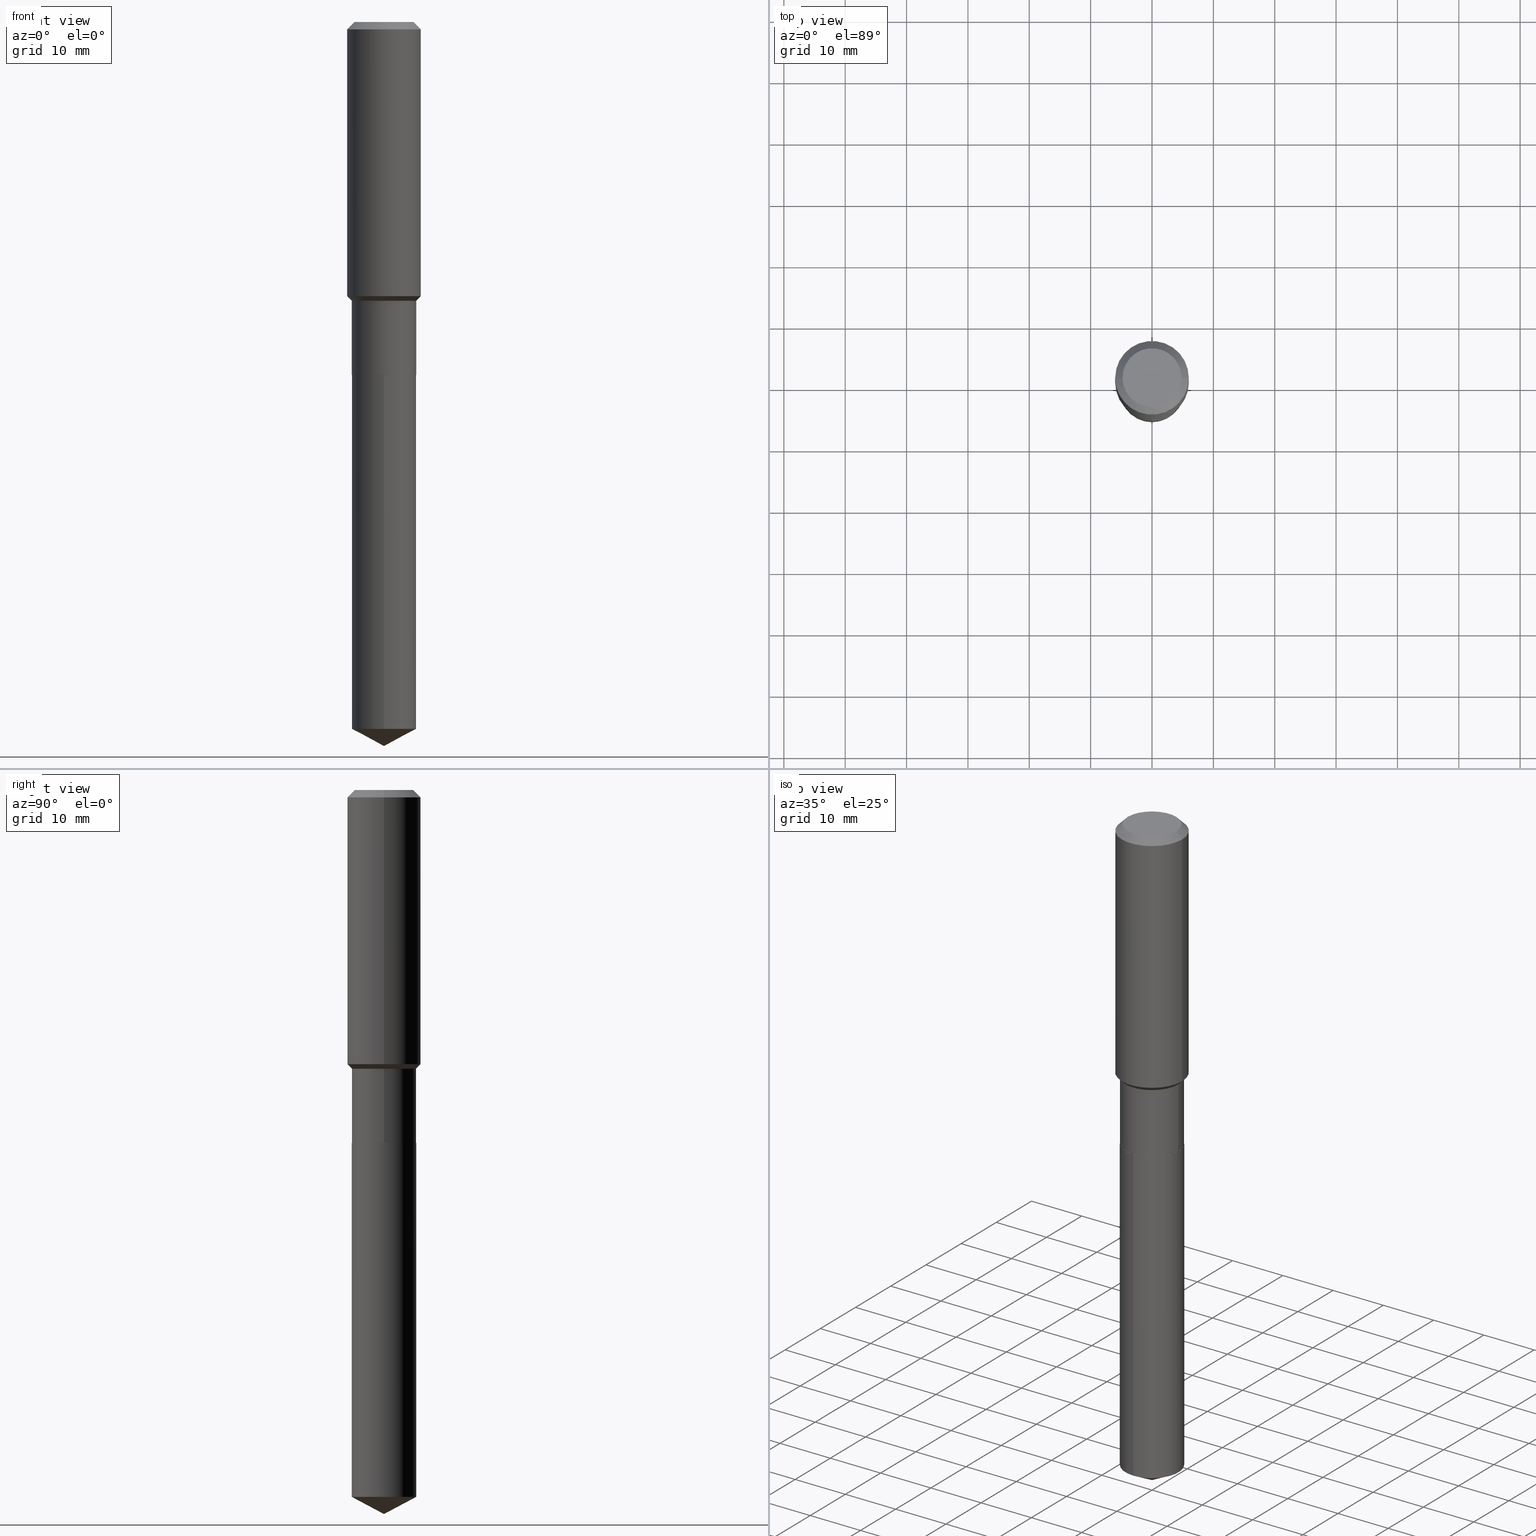
[diagram: canonical four-view strip — front | top / right | iso, engineering-drawing reading convention]
A machine part, canonical four-view strip (front | top / right | iso — engineering-drawing reading convention). The complete STEP part file that produces these views, byte-faithful:
ISO-10303-21;
HEADER;
FILE_DESCRIPTION (( 'STEP AP203' ),
    '1' );
FILE_NAME ('64875.STEP',
    '2024-04-24T19:26:18',
    ( '' ),
    ( '' ),
    'SwSTEP 2.0',
    'SolidWorks 2023',
    '' );
FILE_SCHEMA (( 'CONFIG_CONTROL_DESIGN' ));
ENDSEC;

DATA;
#1 = AXIS2_PLACEMENT_3D ( 'NONE', #317, #312, #489 ) ;
#2 = CARTESIAN_POINT ( 'NONE',  ( 4.373476412981496355E-29, -6.244165226387079301E-15, -1.788399999999999324 ) ) ;
#3 = CC_DESIGN_PERSON_AND_ORGANIZATION_ASSIGNMENT ( #89, #316, ( #209 ) ) ;
#4 = CARTESIAN_POINT ( 'NONE',  ( 1.155239464041865506E-30, -1.649375784469511859E-16, -0.04724000000000028177 ) ) ;
#5 = ORIENTED_EDGE ( 'NONE', *, *, #55, .T. ) ;
#6 = PERSON_AND_ORGANIZATION ( #371, #475 ) ;
#7 = CARTESIAN_POINT ( 'NONE',  ( -0.2362000000000001043, 1.678301941865357380E-15, -1.161852468318209317E-29 ) ) ;
#8 = EDGE_CURVE ( 'NONE', #233, #51, #44, .T. ) ;
#9 = APPROVAL_STATUS ( 'not_yet_approved' ) ;
#10 = DIRECTION ( 'NONE',  ( -1.000000000000000000, 6.982962677686266711E-15, 0.000000000000000000 ) ) ;
#11 = AXIS2_PLACEMENT_3D ( 'NONE', #29, #110, #75 ) ;
#12 = CARTESIAN_POINT ( 'NONE',  ( 4.301335083199035081E-29, -6.141166526891206646E-15, -1.758899999999999464 ) ) ;
#13 = CARTESIAN_POINT ( 'NONE',  ( 0.2066999999999999671, -1.443378385477751018E-15, 1.007905739557019780E-29 ) ) ;
#14 = CONICAL_SURFACE ( 'NONE', #224, 0.2066999999999999393, 0.7853981633974518317 ) ;
#16 = APPROVAL_PERSON_ORGANIZATION ( #282, #104, #428 ) ;
#15 = CC_DESIGN_DATE_AND_TIME_ASSIGNMENT ( #313, #115, ( #71 ) ) ;
#17 = EDGE_LOOP ( 'NONE', ( #251, #479, #419, #364 ) ) ;
#18 = CARTESIAN_POINT ( 'NONE',  ( -0.2066999999999999393, -4.775473391570952253E-15, -1.788399999999999324 ) ) ;
#19 = ORIENTED_EDGE ( 'NONE', *, *, #399, .T. ) ;
#20 = DIRECTION ( 'NONE',  ( -0.7071067811865500152, 7.493145998870363626E-15, 0.7071067811865450192 ) ) ;
#21 = DIRECTION ( 'NONE',  ( -2.445464135208139913E-29, 3.491488027948060197E-15, 1.000000000000000000 ) ) ;
#22 = ADVANCED_FACE ( 'NONE', ( #35 ), #486, .T. ) ;
#23 = ORIENTED_EDGE ( 'NONE', *, *, #190, .T. ) ;
#24 = CYLINDRICAL_SURFACE ( 'NONE', #94, 0.2067000000000000226 ) ;
#25 = ORIENTED_EDGE ( 'NONE', *, *, #147, .T. ) ;
#26 = ORIENTED_EDGE ( 'NONE', *, *, #279, .F. ) ;
#27 = CARTESIAN_POINT ( 'NONE',  ( -0.1889600000000000168, 1.401969416799070942E-15, 3.855188123706346622E-18 ) ) ;
#28 = AXIS2_PLACEMENT_3D ( 'NONE', #40, #377, #453 ) ;
#29 = CARTESIAN_POINT ( 'NONE',  ( 5.536052283441911489E-29, -7.904015454873111947E-15, -2.263799999999999812 ) ) ;
#30 = LINE ( 'NONE', #220, #131 ) ;
#31 = FACE_OUTER_BOUND ( 'NONE', #447, .T. ) ;
#32 = CYLINDRICAL_SURFACE ( 'NONE', #226, 0.2362000000000001043 ) ;
#33 = EDGE_CURVE ( 'NONE', #170, #415, #78, .T. ) ;
#34 = APPROVAL ( #158, 'UNSPECIFIED' ) ;
#35 = FACE_OUTER_BOUND ( 'NONE', #337, .T. ) ;
#36 = CALENDAR_DATE ( 2024, 24, 4 ) ;
#37 = VECTOR ( 'NONE', #20, 39.37007874015748143 ) ;
#38 = CARTESIAN_POINT ( 'NONE',  ( 0.000000000000000000, 0.000000000000000000, 0.000000000000000000 ) ) ;
#39 = SECURITY_CLASSIFICATION_LEVEL ( 'unclassified' ) ;
#40 = CARTESIAN_POINT ( 'NONE',  ( 4.373476412981496355E-29, -6.244165226387079301E-15, -1.788399999999999324 ) ) ;
#41 = CARTESIAN_POINT ( 'NONE',  ( 5.534829549038819808E-29, -7.902269714203691232E-15, -2.263300000000000090 ) ) ;
#42 = DIRECTION ( 'NONE',  ( 0.000000000000000000, 0.000000000000000000, 1.000000000000000000 ) ) ;
#43 = DIRECTION ( 'NONE',  ( 0.7071067811865453523, -7.319954787623248157E-15, -0.7071067811865496822 ) ) ;
#44 = CIRCLE ( 'NONE', #93, 0.2361999999999999933 ) ;
#45 = DIRECTION ( 'NONE',  ( -2.445468806185136597E-29, 3.491481338843145583E-15, 1.000000000000000000 ) ) ;
#46 = DIRECTION ( 'NONE',  ( -6.982962677686265133E-15, -1.000000000000000000, 2.643297526525653668E-15 ) ) ;
#47 = CIRCLE ( 'NONE', #277, 0.2067000000000000226 ) ;
#48 = PRODUCT_DEFINITION_SHAPE ( 'NONE', 'NONE',  #253 ) ;
#49 = AXIS2_PLACEMENT_3D ( 'NONE', #441, #450, #67 ) ;
#50 = MANIFOLD_SOLID_BREP ( 'Body-Move/Copy2[2]', #90 ) ;
#51 = VERTEX_POINT ( 'NONE', #232 ) ;
#52 = ADVANCED_FACE ( 'NONE', ( #264 ), #436, .T. ) ;
#53 = DIRECTION ( 'NONE',  ( -2.445468806185136597E-29, 3.491481338843145583E-15, 1.000000000000000000 ) ) ;
#54 = ORIENTED_EDGE ( 'NONE', *, *, #117, .F. ) ;
#55 = EDGE_CURVE ( 'NONE', #216, #51, #339, .T. ) ;
#56 = DIRECTION ( 'NONE',  ( -2.445468806185136597E-29, 3.491481338843145583E-15, 1.000000000000000000 ) ) ;
#57 = EDGE_LOOP ( 'NONE', ( #276, #135, #386 ) ) ;
#58 = AXIS2_PLACEMENT_3D ( 'NONE', #238, #187, #388 ) ;
#59 = CC_DESIGN_APPROVAL ( #34, ( #71 ) ) ;
#60 = FACE_OUTER_BOUND ( 'NONE', #66, .T. ) ;
#61 = ADVANCED_FACE ( 'NONE', ( #345 ), #14, .T. ) ;
#62 = EDGE_LOOP ( 'NONE', ( #484, #402, #398, #333 ) ) ;
#63 = CARTESIAN_POINT ( 'NONE',  ( 5.536052283441911489E-29, -7.904015454873111947E-15, -2.263799999999999812 ) ) ;
#64 = VERTEX_POINT ( 'NONE', #146 ) ;
#65 = EDGE_CURVE ( 'NONE', #197, #408, #304, .T. ) ;
#66 = EDGE_LOOP ( 'NONE', ( #252, #144, #177, #26 ) ) ;
#67 = DIRECTION ( 'NONE',  ( 1.000000000000000000, -6.982962677686265922E-15, 4.876176775795935793E-29 ) ) ;
#68 = DIRECTION ( 'NONE',  ( -6.165590087286842340E-15, -0.8829475928589273215, 0.4694715627858898066 ) ) ;
#69 =( LENGTH_UNIT ( ) NAMED_UNIT ( * ) SI_UNIT ( $, .METRE. ) );
#70 = CIRCLE ( 'NONE', #112, 0.2067000000000000226 ) ;
#71 = SECURITY_CLASSIFICATION ( '', '', #39 ) ;
#72 = DIRECTION ( 'NONE',  ( 1.000000000000000000, -6.982962677686266711E-15, 4.876176775795935793E-29 ) ) ;
#73 = EDGE_CURVE ( 'NONE', #415, #105, #298, .T. ) ;
#74 = LINE ( 'NONE', #369, #445 ) ;
#75 = DIRECTION ( 'NONE',  ( 1.000000000000000000, -6.982962677686268288E-15, 0.000000000000000000 ) ) ;
#76 = APPLICATION_CONTEXT ( 'configuration controlled 3d designs of mechanical parts and assemblies' ) ;
#77 = CALENDAR_DATE ( 2024, 24, 4 ) ;
#78 = LINE ( 'NONE', #196, #173 ) ;
#79 = ORIENTED_EDGE ( 'NONE', *, *, #201, .T. ) ;
#80 = PERSON_AND_ORGANIZATION ( #371, #475 ) ;
#81 = AXIS2_PLACEMENT_3D ( 'NONE', #322, #471, #248 ) ;
#82 = AXIS2_PLACEMENT_3D ( 'NONE', #476, #352, #10 ) ;
#83 = CARTESIAN_POINT ( 'NONE',  ( 1.136089273293645510E-28, -1.622040593143830205E-14, -4.645699999999999719 ) ) ;
#84 = UNCERTAINTY_MEASURE_WITH_UNIT (LENGTH_MEASURE( 1.000000000000000082E-05 ), #443, 'distance_accuracy_value', 'NONE');
#85 = CALENDAR_DATE ( 2024, 24, 4 ) ;
#86 = DIRECTION ( 'NONE',  ( 1.000000000000000000, -6.982962677686266711E-15, 0.000000000000000000 ) ) ;
#87 = DATE_AND_TIME ( #422, #299 ) ;
#88 = DIRECTION ( 'NONE',  ( -2.445464135208139913E-29, 3.491488027948060197E-15, 1.000000000000000000 ) ) ;
#89 = PERSON_AND_ORGANIZATION ( #371, #475 ) ;
#90 = CLOSED_SHELL ( 'NONE', ( #440, #342, #482, #61, #95, #22, #52, #466, #109, #470, #416, #472 ) ) ;
#91 = AXIS2_PLACEMENT_3D ( 'NONE', #410, #314, #418 ) ;
#92 = CARTESIAN_POINT ( 'NONE',  ( 0.2362000000000001043, -1.649375784469496920E-15, 1.151752954443000508E-29 ) ) ;
#93 = AXIS2_PLACEMENT_3D ( 'NONE', #400, #53, #212 ) ;
#94 = AXIS2_PLACEMENT_3D ( 'NONE', #448, #409, #294 ) ;
#95 = ADVANCED_FACE ( 'NONE', ( #227 ), #229, .T. ) ;
#96 = ADVANCED_FACE ( 'NONE', ( #193 ), #183, .T. ) ;
#97 = DIRECTION ( 'NONE',  ( -2.445464135208139913E-29, 3.491488027948060197E-15, 1.000000000000000000 ) ) ;
#98 = AXIS2_PLACEMENT_3D ( 'NONE', #390, #254, #206 ) ;
#99 = ORIENTED_EDGE ( 'NONE', *, *, #241, .T. ) ;
#100 = DIRECTION ( 'NONE',  ( 1.000000000000000000, -6.982962677686264344E-15, 0.000000000000000000 ) ) ;
#101 = CARTESIAN_POINT ( 'NONE',  ( -4.713871149261273121E-47, 6.730158695841826722E-33, 1.927594061857931128E-18 ) ) ;
#102 = ORIENTED_EDGE ( 'NONE', *, *, #261, .T. ) ;
#103 = CARTESIAN_POINT ( 'NONE',  ( 0.2066999999999999393, -7.687543611864829727E-15, -1.788399999999999324 ) ) ;
#104 = APPROVAL ( #9, 'UNSPECIFIED' ) ;
#105 = VERTEX_POINT ( 'NONE', #451 ) ;
#106 = DIRECTION ( 'NONE',  ( -0.7071067811865453523, 2.468850131082234184E-15, -0.7071067811865496822 ) ) ;
#107 = DIRECTION ( 'NONE',  ( -2.445468806185136597E-29, 3.491481338843145583E-15, 1.000000000000000000 ) ) ;
#108 = DIRECTION ( 'NONE',  ( 1.000000000000000000, -6.982962677686268288E-15, 0.000000000000000000 ) ) ;
#109 = ADVANCED_FACE ( 'NONE', ( #343 ), #249, .T. ) ;
#110 = DIRECTION ( 'NONE',  ( -2.445468806185136597E-29, 3.491481338843145583E-15, 1.000000000000000000 ) ) ;
#111 = LENGTH_MEASURE_WITH_UNIT ( LENGTH_MEASURE( 0.02539999999999999897 ), #69 );
#112 = AXIS2_PLACEMENT_3D ( 'NONE', #434, #97, #46 ) ;
#113 = AXIS2_PLACEMENT_3D ( 'NONE', #178, #300, #480 ) ;
#114 = LINE ( 'NONE', #459, #432 ) ;
#115 = DATE_TIME_ROLE ( 'classification_date' ) ;
#116 = DIRECTION ( 'NONE',  ( -2.445468806185136597E-29, 3.491481338843145583E-15, 1.000000000000000000 ) ) ;
#117 = EDGE_CURVE ( 'NONE', #315, #197, #114, .T. ) ;
#118 = COORDINATED_UNIVERSAL_TIME_OFFSET ( 5, 0, .BEHIND. ) ;
#119 = CARTESIAN_POINT ( 'NONE',  ( 5.534829549038819808E-29, -7.902269714203691232E-15, -2.263300000000000090 ) ) ;
#120 = COORDINATED_UNIVERSAL_TIME_OFFSET ( 5, 0, .BEHIND. ) ;
#121 = VECTOR ( 'NONE', #461, 39.37007874015748143 ) ;
#122 = CONICAL_SURFACE ( 'NONE', #210, 0.2062000000000000222, 0.7853981633975507526 ) ;
#123 = CARTESIAN_POINT ( 'NONE',  ( 4.301335083199035081E-29, -6.141166526891206646E-15, -1.758899999999999464 ) ) ;
#124 = DIRECTION ( 'NONE',  ( -2.445464135208139913E-29, 3.491488027948059802E-15, 1.000000000000000000 ) ) ;
#125 = APPROVAL_STATUS ( 'not_yet_approved' ) ;
#126 = DIRECTION ( 'NONE',  ( -0.7071067811866199593, 7.493145998870616062E-15, 0.7071067811864750752 ) ) ;
#127 = ADVANCED_FACE ( 'NONE', ( #31 ), #152, .F. ) ;
#128 = EDGE_CURVE ( 'NONE', #315, #301, #308, .T. ) ;
#129 = AXIS2_PLACEMENT_3D ( 'NONE', #38, #348, #199 ) ;
#130 = DIRECTION ( 'NONE',  ( -2.445468806185136877E-29, 3.491481338843145188E-15, 1.000000000000000000 ) ) ;
#131 = VECTOR ( 'NONE', #145, 39.37007874015748143 ) ;
#132 = ORIENTED_EDGE ( 'NONE', *, *, #297, .F. ) ;
#133 = VECTOR ( 'NONE', #421, 39.37007874015748143 ) ;
#134 = CARTESIAN_POINT ( 'NONE',  ( -1.443378385477640183E-15, -0.2067000000000157878, -4.535795660475572255 ) ) ;
#135 = ORIENTED_EDGE ( 'NONE', *, *, #117, .T. ) ;
#136 = FACE_OUTER_BOUND ( 'NONE', #188, .T. ) ;
#137 = EDGE_CURVE ( 'NONE', #258, #449, #353, .T. ) ;
#138 = CIRCLE ( 'NONE', #269, 0.2361999999999999933 ) ;
#139 = AXIS2_PLACEMENT_3D ( 'NONE', #63, #21, #488 ) ;
#140 = DIRECTION ( 'NONE',  ( 2.438088387897960049E-29, -3.491481338843145188E-15, -1.000000000000000000 ) ) ;
#141 = ORIENTED_EDGE ( 'NONE', *, *, #435, .T. ) ;
#142 = ORIENTED_EDGE ( 'NONE', *, *, #309, .T. ) ;
#143 = DIRECTION ( 'NONE',  ( -2.445468806185136597E-29, 3.491481338843145583E-15, 1.000000000000000000 ) ) ;
#144 = ORIENTED_EDGE ( 'NONE', *, *, #204, .T. ) ;
#145 = DIRECTION ( 'NONE',  ( 0.7071067811865500152, -2.468850131082282699E-15, 0.7071067811865450192 ) ) ;
#146 = CARTESIAN_POINT ( 'NONE',  ( 0.2362000000000002153, -7.790542311360703960E-15, -1.758899999999999464 ) ) ;
#147 = EDGE_CURVE ( 'NONE', #170, #325, #286, .T. ) ;
#148 = ORIENTED_EDGE ( 'NONE', *, *, #309, .F. ) ;
#149 = PERSON_AND_ORGANIZATION_ROLE ( 'design_supplier' ) ;
#150 = LOCAL_TIME ( 15, 26, 18.00000000000000000, #455 ) ;
#151 = CIRCLE ( 'NONE', #437, 0.1889600000000000168 ) ;
#152 = PLANE ( 'NONE',  #1 ) ;
#153 = EDGE_CURVE ( 'NONE', #325, #170, #328, .T. ) ;
#154 = CARTESIAN_POINT ( 'NONE',  ( 0.000000000000000000, 0.000000000000000000, 0.000000000000000000 ) ) ;
#155 = DIRECTION ( 'NONE',  ( 1.000000000000000000, -6.982962677686264344E-15, 0.000000000000000000 ) ) ;
#156 = ORIENTED_EDGE ( 'NONE', *, *, #8, .T. ) ;
#157 = ADVANCED_BREP_SHAPE_REPRESENTATION ( '64875', ( #382, #50, #259 ), #360 ) ;
#158 = APPROVAL_STATUS ( 'not_yet_approved' ) ;
#159 = EDGE_CURVE ( 'NONE', #197, #301, #346, .T. ) ;
#160 = DIRECTION ( 'NONE',  ( 1.000000000000000000, -6.982962677686269866E-15, 0.000000000000000000 ) ) ;
#161 = ORIENTED_EDGE ( 'NONE', *, *, #147, .F. ) ;
#162 =( NAMED_UNIT ( * ) SI_UNIT ( $, .STERADIAN. ) SOLID_ANGLE_UNIT ( ) );
#163 = AXIS2_PLACEMENT_3D ( 'NONE', #119, #223, #160 ) ;
#164 = CARTESIAN_POINT ( 'NONE',  ( 5.536052283441911489E-29, -7.904015454873111947E-15, -2.263799999999999812 ) ) ;
#165 = EDGE_CURVE ( 'NONE', #64, #233, #365, .T. ) ;
#166 = DIRECTION ( 'NONE',  ( -2.445464135208139913E-29, 3.491488027948060197E-15, 1.000000000000000000 ) ) ;
#167 = LINE ( 'NONE', #280, #289 ) ;
#168 = VECTOR ( 'NONE', #68, 39.37007874015748143 ) ;
#169 = EDGE_CURVE ( 'NONE', #258, #216, #213, .T. ) ;
#170 = VERTEX_POINT ( 'NONE', #323 ) ;
#171 = DIRECTION ( 'NONE',  ( -2.445468806185136597E-29, 3.491481338843145583E-15, 1.000000000000000000 ) ) ;
#172 = ORIENTED_EDGE ( 'NONE', *, *, #165, .F. ) ;
#173 = VECTOR ( 'NONE', #350, 39.37007874015748143 ) ;
#174 = AXIS2_PLACEMENT_3D ( 'NONE', #429, #88, #205 ) ;
#175 = EDGE_LOOP ( 'NONE', ( #102, #5, #292, #172 ) ) ;
#176 = LINE ( 'NONE', #13, #336 ) ;
#177 = ORIENTED_EDGE ( 'NONE', *, *, #165, .T. ) ;
#178 = CARTESIAN_POINT ( 'NONE',  ( 0.000000000000000000, 0.000000000000000000, 0.000000000000000000 ) ) ;
#179 = ORIENTED_EDGE ( 'NONE', *, *, #307, .T. ) ;
#180 = ORIENTED_EDGE ( 'NONE', *, *, #201, .F. ) ;
#181 = DIRECTION ( 'NONE',  ( -2.445468806185136597E-29, 3.491481338843145583E-15, 1.000000000000000000 ) ) ;
#182 = ORIENTED_EDGE ( 'NONE', *, *, #356, .F. ) ;
#183 = CONICAL_SURFACE ( 'NONE', #91, 74.04434902938398011, 1.082104136236488934 ) ;
#184 = ORIENTED_EDGE ( 'NONE', *, *, #231, .F. ) ;
#185 = VECTOR ( 'NONE', #271, 39.37007874015748143 ) ;
#186 = DIRECTION ( 'NONE',  ( -2.445468806185136597E-29, 3.491481338843145583E-15, 1.000000000000000000 ) ) ;
#187 = DIRECTION ( 'NONE',  ( -2.445468806185136597E-29, 3.491481338843145583E-15, 1.000000000000000000 ) ) ;
#188 = EDGE_LOOP ( 'NONE', ( #487, #281, #295, #180 ) ) ;
#189 = CARTESIAN_POINT ( 'NONE',  ( -9.427742298522546243E-47, 1.346031739168365344E-32, 3.855188123715862256E-18 ) ) ;
#190 = EDGE_CURVE ( 'NONE', #325, #105, #167, .T. ) ;
#191 = CARTESIAN_POINT ( 'NONE',  ( 0.000000000000000000, 0.000000000000000000, 0.000000000000000000 ) ) ;
#192 = ORIENTED_EDGE ( 'NONE', *, *, #378, .T. ) ;
#193 = FACE_OUTER_BOUND ( 'NONE', #57, .T. ) ;
#194 = PERSON_AND_ORGANIZATION_ROLE ( 'creator' ) ;
#195 = LOCAL_TIME ( 15, 26, 18.00000000000000000, #430 ) ;
#196 = CARTESIAN_POINT ( 'NONE',  ( 0.2062000000000000222, -9.343902359012020155E-15, -2.263799999999999812 ) ) ;
#197 = VERTEX_POINT ( 'NONE', #247 ) ;
#198 = DATE_AND_TIME ( #383, #250 ) ;
#199 = DIRECTION ( 'NONE',  ( 1.000000000000000000, -6.982962677686266711E-15, 4.876176775795935793E-29 ) ) ;
#200 = CARTESIAN_POINT ( 'NONE',  ( 1.136089273293645510E-28, -1.622040593143830205E-14, -4.645699999999999719 ) ) ;
#201 = EDGE_CURVE ( 'NONE', #408, #474, #47, .T. ) ;
#202 = DIRECTION ( 'NONE',  ( 1.000000000000000000, 0.000000000000000000, 0.000000000000000000 ) ) ;
#204 = EDGE_CURVE ( 'NONE', #216, #64, #424, .T. ) ;
#203 = AXIS2_PLACEMENT_3D ( 'NONE', #41, #207, #358 ) ;
#205 = DIRECTION ( 'NONE',  ( -6.982962677686265133E-15, -1.000000000000000000, 3.541896320645539569E-15 ) ) ;
#206 = DIRECTION ( 'NONE',  ( -6.982962677686265133E-15, -1.000000000000000000, 3.964946289788480107E-15 ) ) ;
#207 = DIRECTION ( 'NONE',  ( -2.445468806185136597E-29, 3.491481338843145583E-15, 1.000000000000000000 ) ) ;
#208 = DESIGN_CONTEXT ( 'detailed design', #76, 'design' ) ;
#209 = PRODUCT ( '64875', '64875', '', ( #354 ) ) ;
#210 = AXIS2_PLACEMENT_3D ( 'NONE', #412, #403, #334 ) ;
#211 = ORIENTED_EDGE ( 'NONE', *, *, #153, .F. ) ;
#212 = DIRECTION ( 'NONE',  ( 1.000000000000000000, -6.982962677686266711E-15, 0.000000000000000000 ) ) ;
#213 = LINE ( 'NONE', #18, #37 ) ;
#214 = APPROVAL ( #125, 'UNSPECIFIED' ) ;
#215 = AXIS2_PLACEMENT_3D ( 'NONE', #456, #143, #384 ) ;
#216 = VERTEX_POINT ( 'NONE', #355 ) ;
#217 = CYLINDRICAL_SURFACE ( 'NONE', #113, 0.2362000000000001043 ) ;
#218 = ORIENTED_EDGE ( 'NONE', *, *, #73, .T. ) ;
#219 = ORIENTED_EDGE ( 'NONE', *, *, #33, .T. ) ;
#220 = CARTESIAN_POINT ( 'NONE',  ( 0.2066999999999999393, -7.687543611864829727E-15, -1.788399999999999324 ) ) ;
#221 = EDGE_LOOP ( 'NONE', ( #141, #296 ) ) ;
#222 = CARTESIAN_POINT ( 'NONE',  ( 0.2067000000000000226, -9.345648099681442448E-15, -2.263300000000000090 ) ) ;
#223 = DIRECTION ( 'NONE',  ( -2.445468806185136597E-29, 3.491481338843145583E-15, 1.000000000000000000 ) ) ;
#224 = AXIS2_PLACEMENT_3D ( 'NONE', #2, #107, #155 ) ;
#225 = ORIENTED_EDGE ( 'NONE', *, *, #190, .F. ) ;
#226 = AXIS2_PLACEMENT_3D ( 'NONE', #341, #181, #338 ) ;
#227 = FACE_OUTER_BOUND ( 'NONE', #446, .T. ) ;
#228 = FACE_OUTER_BOUND ( 'NONE', #326, .T. ) ;
#229 = CYLINDRICAL_SURFACE ( 'NONE', #129, 0.2066999999999999671 ) ;
#230 = APPROVAL_ROLE ( '' ) ;
#231 = EDGE_CURVE ( 'NONE', #302, #372, #234, .T. ) ;
#232 = CARTESIAN_POINT ( 'NONE',  ( -0.2361999999999999933, -1.474750110803721400E-15, -0.04724000000000028177 ) ) ;
#233 = VERTEX_POINT ( 'NONE', #395 ) ;
#234 = CIRCLE ( 'NONE', #81, 0.1889600000000000168 ) ;
#235 = DATE_TIME_ROLE ( 'creation_date' ) ;
#236 = CIRCLE ( 'NONE', #139, 0.2067000000000000226 ) ;
#237 = APPLICATION_CONTEXT ( 'configuration controlled 3d designs of mechanical parts and assemblies' ) ;
#238 = CARTESIAN_POINT ( 'NONE',  ( 5.536052283441911489E-29, -7.904015454873111947E-15, -2.263799999999999812 ) ) ;
#239 = SHAPE_DEFINITION_REPRESENTATION ( #48, #157 ) ;
#240 = DIRECTION ( 'NONE',  ( 1.000000000000000000, -6.982962677686266711E-15, 0.000000000000000000 ) ) ;
#241 = EDGE_CURVE ( 'NONE', #415, #449, #176, .T. ) ;
#242 = EDGE_LOOP ( 'NONE', ( #179, #331, #374, #182 ) ) ;
#243 = CARTESIAN_POINT ( 'NONE',  ( -0.2066999999999999393, -5.604525635479257824E-15, -1.788399999999999324 ) ) ;
#244 = COORDINATED_UNIVERSAL_TIME_OFFSET ( 5, 0, .BEHIND. ) ;
#245 = VECTOR ( 'NONE', #423, 39.37007874015748143 ) ;
#246 = AXIS2_PLACEMENT_3D ( 'NONE', #380, #186, #108 ) ;
#247 = CARTESIAN_POINT ( 'NONE',  ( 1.468691834816237291E-15, 0.2066999999999841187, -4.535795660475574032 ) ) ;
#248 = DIRECTION ( 'NONE',  ( 1.000000000000000000, -6.982962677686266711E-15, 4.876185090822587894E-29 ) ) ;
#249 = CONICAL_SURFACE ( 'NONE', #366, 0.2361999999999999933, 0.7853981633974452814 ) ;
#250 = LOCAL_TIME ( 15, 26, 18.00000000000000000, #118 ) ;
#251 = ORIENTED_EDGE ( 'NONE', *, *, #169, .F. ) ;
#252 = ORIENTED_EDGE ( 'NONE', *, *, #55, .F. ) ;
#253 = PRODUCT_DEFINITION ( 'UNKNOWN', '', #270, #208 ) ;
#254 = DIRECTION ( 'NONE',  ( -2.445464135208139913E-29, 3.491488027948060197E-15, 1.000000000000000000 ) ) ;
#255 = EDGE_LOOP ( 'NONE', ( #184, #368, #156, #266 ) ) ;
#256 = DIRECTION ( 'NONE',  ( -1.000000000000000000, 6.982962677686265922E-15, -4.876176775795935793E-29 ) ) ;
#257 = AXIS2_PLACEMENT_3D ( 'NONE', #381, #268, #414 ) ;
#258 = VERTEX_POINT ( 'NONE', #243 ) ;
#259 = AXIS2_PLACEMENT_3D ( 'NONE', #154, #42, #202 ) ;
#260 = EDGE_LOOP ( 'NONE', ( #132, #439, #305, #464 ) ) ;
#261 = EDGE_CURVE ( 'NONE', #64, #216, #462, .T. ) ;
#262 = DIMENSIONAL_EXPONENTS ( 1.000000000000000000, 0.000000000000000000, 0.000000000000000000, 0.000000000000000000, 0.000000000000000000, 0.000000000000000000, 0.000000000000000000 ) ;
#263 = FACE_OUTER_BOUND ( 'NONE', #221, .T. ) ;
#264 = FACE_OUTER_BOUND ( 'NONE', #17, .T. ) ;
#265 = PRODUCT_RELATED_PRODUCT_CATEGORY ( 'detail', '', ( #209 ) ) ;
#266 = ORIENTED_EDGE ( 'NONE', *, *, #363, .F. ) ;
#267 = PLANE ( 'NONE',  #330 ) ;
#268 = DIRECTION ( 'NONE',  ( -2.445464135208139913E-29, 3.491488027948060197E-15, 1.000000000000000000 ) ) ;
#269 = AXIS2_PLACEMENT_3D ( 'NONE', #427, #45, #86 ) ;
#270 = PRODUCT_DEFINITION_FORMATION_WITH_SPECIFIED_SOURCE ( 'ANY', '', #209, .NOT_KNOWN. ) ;
#271 = DIRECTION ( 'NONE',  ( -2.445468806185136877E-29, 3.491481338843145188E-15, 1.000000000000000000 ) ) ;
#272 = DIRECTION ( 'NONE',  ( 2.445468806185136597E-29, -3.491481338843145583E-15, -1.000000000000000000 ) ) ;
#273 = PERSON_AND_ORGANIZATION_ROLE ( 'creator' ) ;
#274 = CARTESIAN_POINT ( 'NONE',  ( 1.468691834816182268E-15, 0.2066999999999921123, -2.263800000000000701 ) ) ;
#275 = DIRECTION ( 'NONE',  ( 6.273719981627773176E-15, 0.8829475928589307632, 0.4694715627858835894 ) ) ;
#276 = ORIENTED_EDGE ( 'NONE', *, *, #128, .F. ) ;
#277 = AXIS2_PLACEMENT_3D ( 'NONE', #164, #166, #431 ) ;
#278 = PERSON_AND_ORGANIZATION ( #371, #475 ) ;
#279 = EDGE_CURVE ( 'NONE', #51, #233, #138, .T. ) ;
#280 = CARTESIAN_POINT ( 'NONE',  ( -0.2062000000000000222, -6.438876333735785798E-15, -2.263799999999999812 ) ) ;
#281 = ORIENTED_EDGE ( 'NONE', *, *, #159, .T. ) ;
#282 = PERSON_AND_ORGANIZATION ( #371, #475 ) ;
#283 = FACE_OUTER_BOUND ( 'NONE', #411, .T. ) ;
#284 = APPROVAL_ROLE ( '' ) ;
#285 = DIRECTION ( 'NONE',  ( 1.000000000000000000, -6.982962677686266711E-15, 0.000000000000000000 ) ) ;
#286 = CIRCLE ( 'NONE', #58, 0.2062000000000000222 ) ;
#287 = LOCAL_TIME ( 15, 26, 18.00000000000000000, #120 ) ;
#288 = CARTESIAN_POINT ( 'NONE',  ( 0.1889600000000000168, -1.540873453589747738E-15, 3.855188123725863225E-18 ) ) ;
#289 = VECTOR ( 'NONE', #126, 39.37007874015748143 ) ;
#290 = ADVANCED_FACE ( 'NONE', ( #469 ), #293, .T. ) ;
#291 = ORIENTED_EDGE ( 'NONE', *, *, #349, .F. ) ;
#292 = ORIENTED_EDGE ( 'NONE', *, *, #8, .F. ) ;
#293 = CYLINDRICAL_SURFACE ( 'NONE', #98, 0.2067000000000000226 ) ;
#294 = DIRECTION ( 'NONE',  ( -6.982962677686265133E-15, -1.000000000000000000, 3.964946289788480107E-15 ) ) ;
#295 = ORIENTED_EDGE ( 'NONE', *, *, #356, .T. ) ;
#296 = ORIENTED_EDGE ( 'NONE', *, *, #231, .T. ) ;
#297 = EDGE_CURVE ( 'NONE', #302, #233, #391, .T. ) ;
#298 = CIRCLE ( 'NONE', #163, 0.2067000000000000226 ) ;
#299 = LOCAL_TIME ( 15, 26, 18.00000000000000000, #244 ) ;
#300 = DIRECTION ( 'NONE',  ( -2.445468806185136597E-29, 3.491481338843145583E-15, 1.000000000000000000 ) ) ;
#301 = VERTEX_POINT ( 'NONE', #134 ) ;
#302 = VERTEX_POINT ( 'NONE', #288 ) ;
#303 = CARTESIAN_POINT ( 'NONE',  ( -0.2066999999999999671, 1.468691834816126850E-15, -1.016743883155689005E-29 ) ) ;
#304 = LINE ( 'NONE', #274, #133 ) ;
#305 = ORIENTED_EDGE ( 'NONE', *, *, #363, .T. ) ;
#306 = LINE ( 'NONE', #303, #185 ) ;
#307 = EDGE_CURVE ( 'NONE', #301, #197, #70, .T. ) ;
#308 = LINE ( 'NONE', #83, #168 ) ;
#309 = EDGE_CURVE ( 'NONE', #105, #415, #413, .T. ) ;
#310 = ORIENTED_EDGE ( 'NONE', *, *, #241, .F. ) ;
#311 = PERSON_AND_ORGANIZATION ( #371, #475 ) ;
#312 = DIRECTION ( 'NONE',  ( 2.445464135208139913E-29, -3.491488027948059802E-15, -1.000000000000000000 ) ) ;
#313 = DATE_AND_TIME ( #85, #287 ) ;
#314 = DIRECTION ( 'NONE',  ( -2.445464135208139913E-29, 3.491488027948060197E-15, 1.000000000000000000 ) ) ;
#315 = VERTEX_POINT ( 'NONE', #200 ) ;
#316 = PERSON_AND_ORGANIZATION_ROLE ( 'design_owner' ) ;
#317 = CARTESIAN_POINT ( 'NONE',  ( 5.536052283441911489E-29, -7.904015454873111947E-15, -2.263799999999999812 ) ) ;
#318 = VECTOR ( 'NONE', #43, 39.37007874015748143 ) ;
#319 = CONICAL_SURFACE ( 'NONE', #82, 0.2361999999999999933, 0.7853981633974452814 ) ;
#320 = LINE ( 'NONE', #467, #347 ) ;
#321 = APPLICATION_PROTOCOL_DEFINITION ( 'international standard', 'config_control_design', 1994, #76 ) ;
#322 = CARTESIAN_POINT ( 'NONE',  ( -9.427742298522546243E-47, 1.346031739168365344E-32, 3.855188123715862256E-18 ) ) ;
#323 = CARTESIAN_POINT ( 'NONE',  ( 0.2062000000000000222, -9.343902359012020155E-15, -2.263799999999999812 ) ) ;
#324 = CLOSED_SHELL ( 'NONE', ( #290, #96, #361, #393, #127 ) ) ;
#325 = VERTEX_POINT ( 'NONE', #327 ) ;
#326 = EDGE_LOOP ( 'NONE', ( #25, #23, #442, #407 ) ) ;
#327 = CARTESIAN_POINT ( 'NONE',  ( -0.2062000000000000222, -6.436227106561674597E-15, -2.263799999999999812 ) ) ;
#328 = CIRCLE ( 'NONE', #11, 0.2062000000000000222 ) ;
#330 = AXIS2_PLACEMENT_3D ( 'NONE', #101, #140, #256 ) ;
#329 = CC_DESIGN_PERSON_AND_ORGANIZATION_ASSIGNMENT ( #344, #194, ( #270 ) ) ;
#331 = ORIENTED_EDGE ( 'NONE', *, *, #65, .T. ) ;
#332 = FACE_OUTER_BOUND ( 'NONE', #389, .T. ) ;
#333 = ORIENTED_EDGE ( 'NONE', *, *, #396, .F. ) ;
#334 = DIRECTION ( 'NONE',  ( 1.000000000000000000, -6.982962677686268288E-15, 0.000000000000000000 ) ) ;
#335 = ORIENTED_EDGE ( 'NONE', *, *, #159, .F. ) ;
#336 = VECTOR ( 'NONE', #130, 39.37007874015748143 ) ;
#337 = EDGE_LOOP ( 'NONE', ( #340, #142, #99, #481 ) ) ;
#338 = DIRECTION ( 'NONE',  ( 1.000000000000000000, -6.982962677686266711E-15, 4.876176775795935793E-29 ) ) ;
#339 = LINE ( 'NONE', #7, #245 ) ;
#340 = ORIENTED_EDGE ( 'NONE', *, *, #399, .F. ) ;
#341 = CARTESIAN_POINT ( 'NONE',  ( 0.000000000000000000, 0.000000000000000000, 0.000000000000000000 ) ) ;
#342 = ADVANCED_FACE ( 'NONE', ( #401 ), #319, .T. ) ;
#343 = FACE_OUTER_BOUND ( 'NONE', #260, .T. ) ;
#344 = PERSON_AND_ORGANIZATION ( #371, #475 ) ;
#345 = FACE_OUTER_BOUND ( 'NONE', #62, .T. ) ;
#346 = CIRCLE ( 'NONE', #257, 0.2067000000000000226 ) ;
#347 = VECTOR ( 'NONE', #124, 39.37007874015748143 ) ;
#348 = DIRECTION ( 'NONE',  ( -2.445468806185136597E-29, 3.491481338843145583E-15, 1.000000000000000000 ) ) ;
#349 = EDGE_CURVE ( 'NONE', #449, #258, #392, .T. ) ;
#350 = DIRECTION ( 'NONE',  ( 0.7071067811866199593, -2.468850131083015945E-15, 0.7071067811864750752 ) ) ;
#351 = CC_DESIGN_DATE_AND_TIME_ASSIGNMENT ( #468, #235, ( #253 ) ) ;
#352 = DIRECTION ( 'NONE',  ( 2.445468806185136597E-29, -3.491481338843145583E-15, -1.000000000000000000 ) ) ;
#353 = CIRCLE ( 'NONE', #28, 0.2066999999999999393 ) ;
#354 = MECHANICAL_CONTEXT ( 'NONE', #237, 'mechanical' ) ;
#355 = CARTESIAN_POINT ( 'NONE',  ( -0.2362000000000002153, -4.462864585025847885E-15, -1.758899999999999464 ) ) ;
#356 = EDGE_CURVE ( 'NONE', #301, #474, #320, .T. ) ;
#357 = CARTESIAN_POINT ( 'NONE',  ( 0.2361999999999999933, -1.785387205520586782E-15, -0.04724000000000028177 ) ) ;
#358 = DIRECTION ( 'NONE',  ( 1.000000000000000000, -6.982962677686269866E-15, 0.000000000000000000 ) ) ;
#359 = AXIS2_PLACEMENT_3D ( 'NONE', #123, #171, #285 ) ;
#360 =( GEOMETRIC_REPRESENTATION_CONTEXT ( 3 ) GLOBAL_UNCERTAINTY_ASSIGNED_CONTEXT ( ( #84 ) ) GLOBAL_UNIT_ASSIGNED_CONTEXT ( ( #443, #406, #162 ) ) REPRESENTATION_CONTEXT ( 'NONE', 'WORKASPACE' ) );
#361 = ADVANCED_FACE ( 'NONE', ( #283 ), #433, .T. ) ;
#362 = EDGE_LOOP ( 'NONE', ( #225, #405, #219, #148 ) ) ;
#363 = EDGE_CURVE ( 'NONE', #372, #51, #74, .T. ) ;
#364 = ORIENTED_EDGE ( 'NONE', *, *, #204, .F. ) ;
#365 = LINE ( 'NONE', #92, #121 ) ;
#366 = AXIS2_PLACEMENT_3D ( 'NONE', #4, #272, #379 ) ;
#367 = CC_DESIGN_APPROVAL ( #104, ( #253 ) ) ;
#368 = ORIENTED_EDGE ( 'NONE', *, *, #297, .T. ) ;
#369 = CARTESIAN_POINT ( 'NONE',  ( -0.2361999999999999933, 1.484438206022545019E-15, -0.04724000000000028177 ) ) ;
#370 = CC_DESIGN_PERSON_AND_ORGANIZATION_ASSIGNMENT ( #311, #387, ( #71 ) ) ;
#371 = PERSON ( 'UNSPECIFIED', 'UNSPECIFIED', 'UNSPECIFIED', ('UNSPECIFIED'), ('UNSPECIFIED'), ('UNSPECIFIED') ) ;
#372 = VERTEX_POINT ( 'NONE', #27 ) ;
#373 = DIRECTION ( 'NONE',  ( -2.445468806185136597E-29, 3.491481338843145583E-15, 1.000000000000000000 ) ) ;
#374 = ORIENTED_EDGE ( 'NONE', *, *, #378, .F. ) ;
#375 = DIRECTION ( 'NONE',  ( 1.000000000000000000, -6.982962677686266711E-15, 4.876185090822587894E-29 ) ) ;
#376 = AXIS2_PLACEMENT_3D ( 'NONE', #191, #116, #72 ) ;
#377 = DIRECTION ( 'NONE',  ( -2.445468806185136597E-29, 3.491481338843145583E-15, 1.000000000000000000 ) ) ;
#378 = EDGE_CURVE ( 'NONE', #474, #408, #236, .T. ) ;
#379 = DIRECTION ( 'NONE',  ( -1.000000000000000000, 6.982962677686266711E-15, 0.000000000000000000 ) ) ;
#380 = CARTESIAN_POINT ( 'NONE',  ( 5.536052283441911489E-29, -7.904015454873111947E-15, -2.263799999999999812 ) ) ;
#381 = CARTESIAN_POINT ( 'NONE',  ( 1.109213618648345564E-28, -1.583666110297352308E-14, -4.535795660475573143 ) ) ;
#382 = MANIFOLD_SOLID_BREP ( 'Body-Move/Copy2[1]', #324 ) ;
#383 = CALENDAR_DATE ( 2024, 24, 4 ) ;
#384 = DIRECTION ( 'NONE',  ( 1.000000000000000000, -6.982962677686264344E-15, 0.000000000000000000 ) ) ;
#385 = AXIS2_PLACEMENT_3D ( 'NONE', #438, #56, #100 ) ;
#386 = ORIENTED_EDGE ( 'NONE', *, *, #307, .F. ) ;
#387 = PERSON_AND_ORGANIZATION_ROLE ( 'classification_officer' ) ;
#388 = DIRECTION ( 'NONE',  ( 1.000000000000000000, -6.982962677686268288E-15, 0.000000000000000000 ) ) ;
#389 = EDGE_LOOP ( 'NONE', ( #161, #211 ) ) ;
#390 = CARTESIAN_POINT ( 'NONE',  ( 5.536052283441911489E-29, -7.904015454873111947E-15, -2.263799999999999812 ) ) ;
#391 = LINE ( 'NONE', #357, #318 ) ;
#392 = CIRCLE ( 'NONE', #385, 0.2066999999999999393 ) ;
#393 = ADVANCED_FACE ( 'NONE', ( #136 ), #24, .T. ) ;
#394 = DIRECTION ( 'NONE',  ( -2.445468806185136597E-29, 3.491481338843145583E-15, 1.000000000000000000 ) ) ;
#395 = CARTESIAN_POINT ( 'NONE',  ( 0.2361999999999999933, -1.814313362916447440E-15, -0.04724000000000028177 ) ) ;
#396 = EDGE_CURVE ( 'NONE', #449, #64, #30, .T. ) ;
#397 = CC_DESIGN_APPROVAL ( #214, ( #270 ) ) ;
#398 = ORIENTED_EDGE ( 'NONE', *, *, #261, .F. ) ;
#399 = EDGE_CURVE ( 'NONE', #105, #258, #306, .T. ) ;
#400 = CARTESIAN_POINT ( 'NONE',  ( 1.155239464041865506E-30, -1.649375784469511859E-16, -0.04724000000000028177 ) ) ;
#401 = FACE_OUTER_BOUND ( 'NONE', #255, .T. ) ;
#402 = ORIENTED_EDGE ( 'NONE', *, *, #169, .T. ) ;
#403 = DIRECTION ( 'NONE',  ( -2.445468806185136597E-29, 3.491481338843145583E-15, 1.000000000000000000 ) ) ;
#404 = CC_DESIGN_SECURITY_CLASSIFICATION ( #71, ( #270 ) ) ;
#405 = ORIENTED_EDGE ( 'NONE', *, *, #153, .T. ) ;
#406 =( NAMED_UNIT ( * ) PLANE_ANGLE_UNIT ( ) SI_UNIT ( $, .RADIAN. ) );
#407 = ORIENTED_EDGE ( 'NONE', *, *, #33, .F. ) ;
#408 = VERTEX_POINT ( 'NONE', #417 ) ;
#409 = DIRECTION ( 'NONE',  ( -2.445464135208139913E-29, 3.491488027948060197E-15, 1.000000000000000000 ) ) ;
#410 = CARTESIAN_POINT ( 'NONE',  ( -8.491721225228140746E-28, 1.212397677919896858E-13, 34.72437874015748349 ) ) ;
#411 = EDGE_LOOP ( 'NONE', ( #54, #477, #335 ) ) ;
#412 = CARTESIAN_POINT ( 'NONE',  ( 5.536052283441911489E-29, -7.904015454873111947E-15, -2.263799999999999812 ) ) ;
#413 = CIRCLE ( 'NONE', #203, 0.2067000000000000226 ) ;
#414 = DIRECTION ( 'NONE',  ( -6.982962677686265133E-15, -1.000000000000000000, 2.643297526525653668E-15 ) ) ;
#415 = VERTEX_POINT ( 'NONE', #222 ) ;
#416 = ADVANCED_FACE ( 'NONE', ( #332 ), #478, .F. ) ;
#417 = CARTESIAN_POINT ( 'NONE',  ( 1.468691834816238474E-15, 0.2066999999999921123, -2.263800000000000701 ) ) ;
#418 = DIRECTION ( 'NONE',  ( -6.982962677686265133E-15, -1.000000000000000000, 3.541896320645539569E-15 ) ) ;
#419 = ORIENTED_EDGE ( 'NONE', *, *, #396, .T. ) ;
#420 = APPROVAL_DATE_TIME ( #87, #104 ) ;
#421 = DIRECTION ( 'NONE',  ( -2.445464135208139913E-29, 3.491488027948059802E-15, 1.000000000000000000 ) ) ;
#422 = CALENDAR_DATE ( 2024, 24, 4 ) ;
#423 = DIRECTION ( 'NONE',  ( -2.445468806185136877E-29, 3.491481338843145188E-15, 1.000000000000000000 ) ) ;
#424 = CIRCLE ( 'NONE', #444, 0.2362000000000002153 ) ;
#425 = APPROVAL_PERSON_ORGANIZATION ( #80, #214, #284 ) ;
#426 = APPROVAL_DATE_TIME ( #198, #34 ) ;
#427 = CARTESIAN_POINT ( 'NONE',  ( 1.155239464041865506E-30, -1.649375784469511859E-16, -0.04724000000000028177 ) ) ;
#428 = APPROVAL_ROLE ( '' ) ;
#429 = CARTESIAN_POINT ( 'NONE',  ( -8.491721225228140746E-28, 1.212397677919896858E-13, 34.72437874015748349 ) ) ;
#430 = COORDINATED_UNIVERSAL_TIME_OFFSET ( 5, 0, .BEHIND. ) ;
#431 = DIRECTION ( 'NONE',  ( -6.982962677686265133E-15, -1.000000000000000000, 3.964946289788480107E-15 ) ) ;
#432 = VECTOR ( 'NONE', #275, 39.37007874015748143 ) ;
#433 = CONICAL_SURFACE ( 'NONE', #174, 74.04434902938398011, 1.082104136236488934 ) ;
#434 = CARTESIAN_POINT ( 'NONE',  ( 1.109213618648345564E-28, -1.583666110297352308E-14, -4.535795660475573143 ) ) ;
#435 = EDGE_CURVE ( 'NONE', #372, #302, #151, .T. ) ;
#436 = CONICAL_SURFACE ( 'NONE', #215, 0.2066999999999999393, 0.7853981633974518317 ) ;
#437 = AXIS2_PLACEMENT_3D ( 'NONE', #189, #373, #375 ) ;
#438 = CARTESIAN_POINT ( 'NONE',  ( 4.373476412981496355E-29, -6.244165226387079301E-15, -1.788399999999999324 ) ) ;
#439 = ORIENTED_EDGE ( 'NONE', *, *, #435, .F. ) ;
#440 = ADVANCED_FACE ( 'NONE', ( #228 ), #454, .T. ) ;
#441 = CARTESIAN_POINT ( 'NONE',  ( 5.536052283441911489E-29, -7.904015454873111947E-15, -2.263799999999999812 ) ) ;
#442 = ORIENTED_EDGE ( 'NONE', *, *, #73, .F. ) ;
#443 =( CONVERSION_BASED_UNIT ( 'INCH', #111 ) LENGTH_UNIT ( ) NAMED_UNIT ( #262 ) );
#444 = AXIS2_PLACEMENT_3D ( 'NONE', #12, #394, #240 ) ;
#445 = VECTOR ( 'NONE', #106, 39.37007874015748143 ) ;
#446 = EDGE_LOOP ( 'NONE', ( #218, #19, #291, #310 ) ) ;
#447 = EDGE_LOOP ( 'NONE', ( #192, #79 ) ) ;
#448 = CARTESIAN_POINT ( 'NONE',  ( 5.536052283441911489E-29, -7.904015454873111947E-15, -2.263799999999999812 ) ) ;
#449 = VERTEX_POINT ( 'NONE', #103 ) ;
#450 = DIRECTION ( 'NONE',  ( -2.438088387897960049E-29, 3.491481338843145188E-15, 1.000000000000000000 ) ) ;
#451 = CARTESIAN_POINT ( 'NONE',  ( -0.2067000000000000226, -5.604525635479257035E-15, -2.263300000000000090 ) ) ;
#452 = FACE_OUTER_BOUND ( 'NONE', #175, .T. ) ;
#453 = DIRECTION ( 'NONE',  ( 1.000000000000000000, -6.982962677686264344E-15, 0.000000000000000000 ) ) ;
#454 = CONICAL_SURFACE ( 'NONE', #246, 0.2062000000000000222, 0.7853981633975507526 ) ;
#455 = COORDINATED_UNIVERSAL_TIME_OFFSET ( 5, 0, .BEHIND. ) ;
#456 = CARTESIAN_POINT ( 'NONE',  ( 4.373476412981496355E-29, -6.244165226387079301E-15, -1.788399999999999324 ) ) ;
#457 = DATE_AND_TIME ( #77, #195 ) ;
#458 = CC_DESIGN_PERSON_AND_ORGANIZATION_ASSIGNMENT ( #6, #273, ( #253 ) ) ;
#459 = CARTESIAN_POINT ( 'NONE',  ( 1.136091406669766642E-28, -1.622037564584688981E-14, -4.645699999999999719 ) ) ;
#460 = APPROVAL_DATE_TIME ( #457, #214 ) ;
#461 = DIRECTION ( 'NONE',  ( -2.445468806185136877E-29, 3.491481338843145188E-15, 1.000000000000000000 ) ) ;
#462 = CIRCLE ( 'NONE', #359, 0.2362000000000002153 ) ;
#463 = APPROVAL_PERSON_ORGANIZATION ( #278, #34, #230 ) ;
#464 = ORIENTED_EDGE ( 'NONE', *, *, #279, .T. ) ;
#465 = APPLICATION_PROTOCOL_DEFINITION ( 'international standard', 'config_control_design', 1994, #237 ) ;
#466 = ADVANCED_FACE ( 'NONE', ( #60 ), #32, .T. ) ;
#467 = CARTESIAN_POINT ( 'NONE',  ( -1.443378385477695995E-15, -0.2067000000000079052, -2.263799999999998924 ) ) ;
#468 = DATE_AND_TIME ( #36, #150 ) ;
#469 = FACE_OUTER_BOUND ( 'NONE', #242, .T. ) ;
#470 = ADVANCED_FACE ( 'NONE', ( #263 ), #267, .F. ) ;
#471 = DIRECTION ( 'NONE',  ( -2.445468806185136597E-29, 3.491481338843145583E-15, 1.000000000000000000 ) ) ;
#472 = ADVANCED_FACE ( 'NONE', ( #483 ), #122, .T. ) ;
#473 = CC_DESIGN_PERSON_AND_ORGANIZATION_ASSIGNMENT ( #490, #149, ( #270 ) ) ;
#474 = VERTEX_POINT ( 'NONE', #485 ) ;
#475 = ORGANIZATION ( 'UNSPECIFIED', 'UNSPECIFIED', '' ) ;
#476 = CARTESIAN_POINT ( 'NONE',  ( 1.155239464041865506E-30, -1.649375784469511859E-16, -0.04724000000000028177 ) ) ;
#477 = ORIENTED_EDGE ( 'NONE', *, *, #128, .T. ) ;
#478 = PLANE ( 'NONE',  #49 ) ;
#479 = ORIENTED_EDGE ( 'NONE', *, *, #137, .T. ) ;
#480 = DIRECTION ( 'NONE',  ( 1.000000000000000000, -6.982962677686266711E-15, 4.876176775795935793E-29 ) ) ;
#481 = ORIENTED_EDGE ( 'NONE', *, *, #137, .F. ) ;
#482 = ADVANCED_FACE ( 'NONE', ( #452 ), #217, .T. ) ;
#483 = FACE_OUTER_BOUND ( 'NONE', #362, .T. ) ;
#484 = ORIENTED_EDGE ( 'NONE', *, *, #349, .T. ) ;
#485 = CARTESIAN_POINT ( 'NONE',  ( -1.443378385477695995E-15, -0.2067000000000079052, -2.263799999999998924 ) ) ;
#486 = CYLINDRICAL_SURFACE ( 'NONE', #376, 0.2066999999999999671 ) ;
#487 = ORIENTED_EDGE ( 'NONE', *, *, #65, .F. ) ;
#488 = DIRECTION ( 'NONE',  ( -6.982962677686265133E-15, -1.000000000000000000, 3.964946289788480107E-15 ) ) ;
#489 = DIRECTION ( 'NONE',  ( 6.982962677686265922E-15, 1.000000000000000000, -3.491488027948059802E-15 ) ) ;
#490 = PERSON_AND_ORGANIZATION ( #371, #475 ) ;
ENDSEC;
END-ISO-10303-21;
